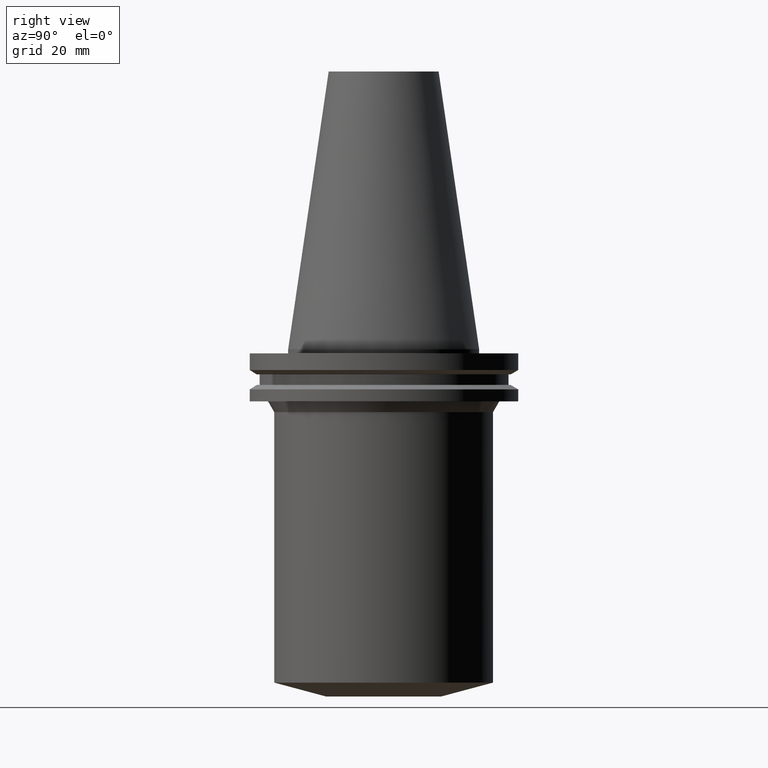
[diagram: clean part render]
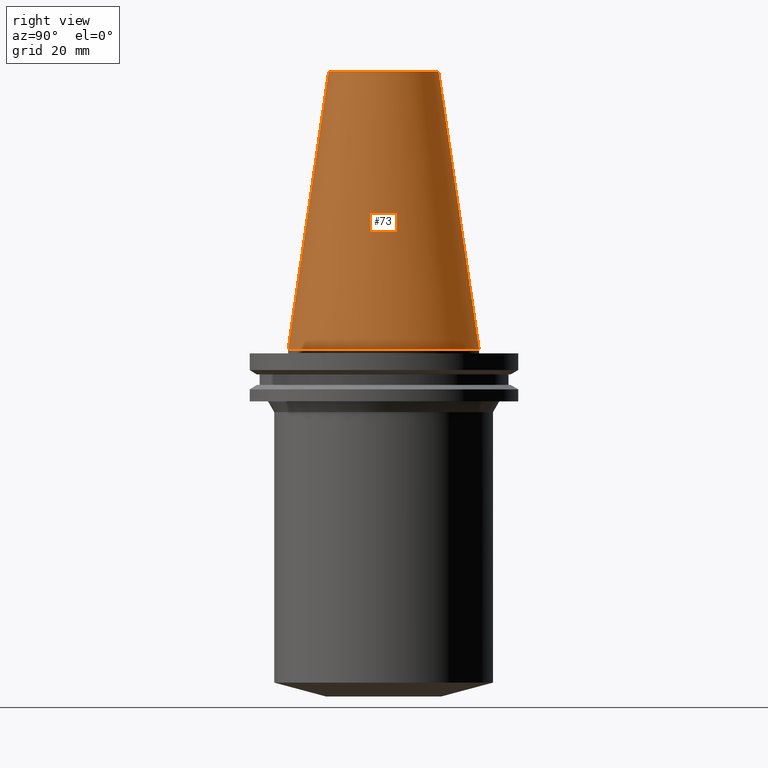
[diagram: same view with one face highlighted and labeled with its STEP entity id]
A machine part, right view. The second image highlights one B-rep face of the part: STEP entity #73.
In plain terms, the highlighted conical surface has half-angle 8.297 deg.
Its self-contained STEP definition (entity closure, byte-faithful):
#58=EDGE_CURVE('Unnamed[1]',#156,#156,#157,.T.);
#73=ADVANCED_FACE('Unnamed[1]',(#178,#179),#180,.T.);
#83=EDGE_CURVE('Unnamed[1]',#195,#195,#196,.T.);
#156=VERTEX_POINT('',#290);
#157=CIRCLE('',#291,34.925);
#178=FACE_BOUND('',#318,.T.);
#179=FACE_BOUND('',#319,.T.);
#180=CONICAL_SURFACE('',#320,27.5166666648609,0.144812498273746);
#195=VERTEX_POINT('',#339);
#196=CIRCLE('',#340,20.1083333297217);
#290=CARTESIAN_POINT('',(-4.30483861169435E-031,34.925,4.27707894602213E-015));
#291=AXIS2_PLACEMENT_3D('',#445,#446,#447);
#318=EDGE_LOOP('',(#469));
#319=EDGE_LOOP('',(#470));
#320=AXIS2_PLACEMENT_3D('',#471,#472,#473);
#339=CARTESIAN_POINT('',(-6.22120573966855E-015,20.1083333297217,101.6));
#340=AXIS2_PLACEMENT_3D('',#489,#490,#491);
#445=CARTESIAN_POINT('',(0.0,0.0,0.0));
#446=DIRECTION('',(6.12323399573677E-017,1.22464679914735E-016,-1.0));
#447=DIRECTION('',(-1.23259516440783E-032,1.0,1.22464679914735E-016));
#469=ORIENTED_EDGE('',*,*,#58,.F.);
#470=ORIENTED_EDGE('',*,*,#83,.T.);
#471=CARTESIAN_POINT('',(-3.11060286983428E-015,-6.22120573966855E-015,50.8));
#472=DIRECTION('',(6.12323399573677E-017,1.22464679914735E-016,-1.0));
#473=DIRECTION('',(-1.23259516440783E-032,1.0,1.22464679914735E-016));
#489=CARTESIAN_POINT('',(-6.22120573966855E-015,-1.24424114793371E-014,101.6));
#490=DIRECTION('',(6.12323399573676E-017,1.22464679914735E-016,-1.0));
#491=DIRECTION('',(-1.23259516440783E-032,1.0,1.22464679914735E-016));